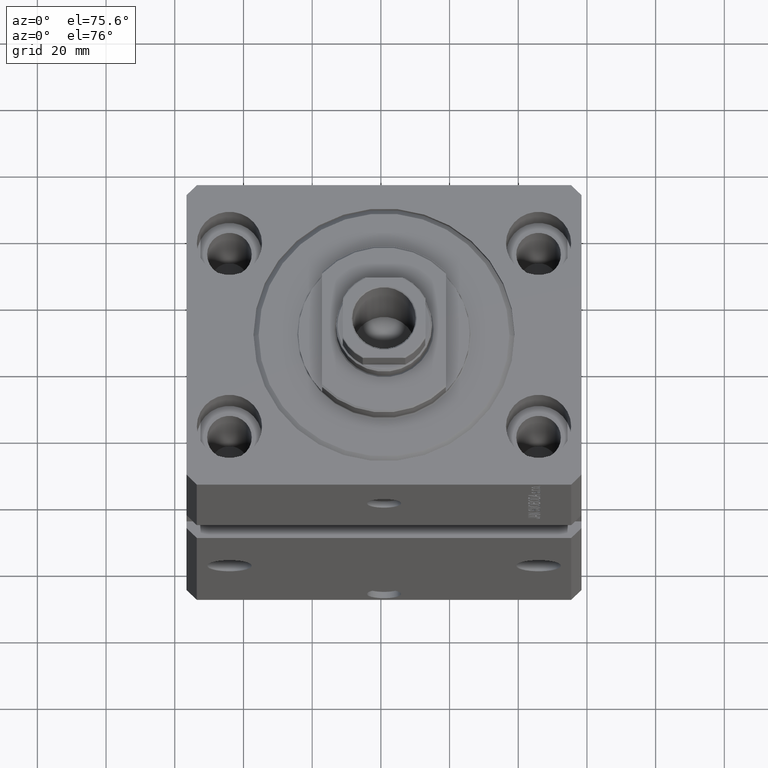
[diagram: clean part render]
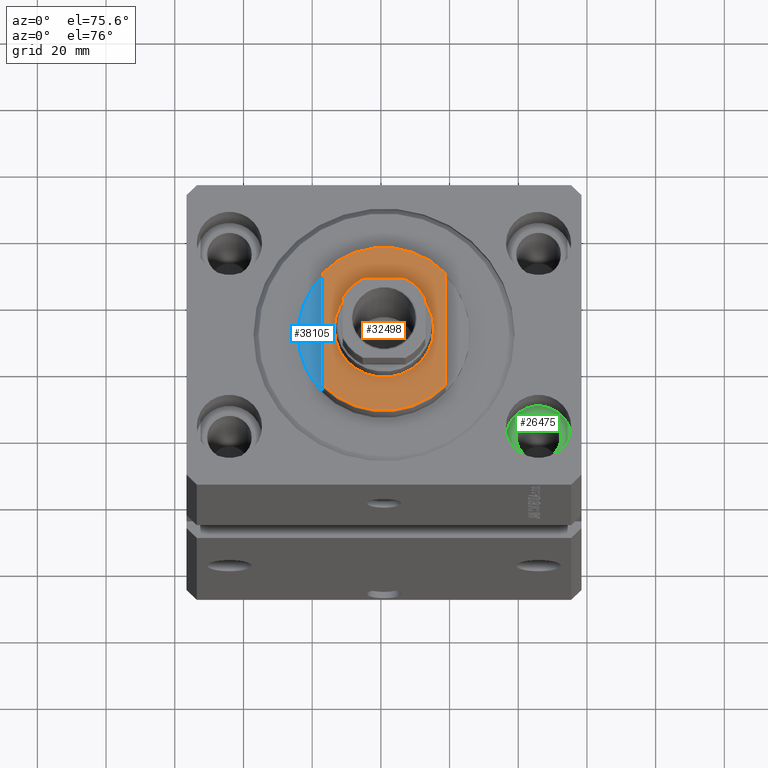
[diagram: same view with three faces highlighted in distinct colors, each labeled with its STEP entity id]
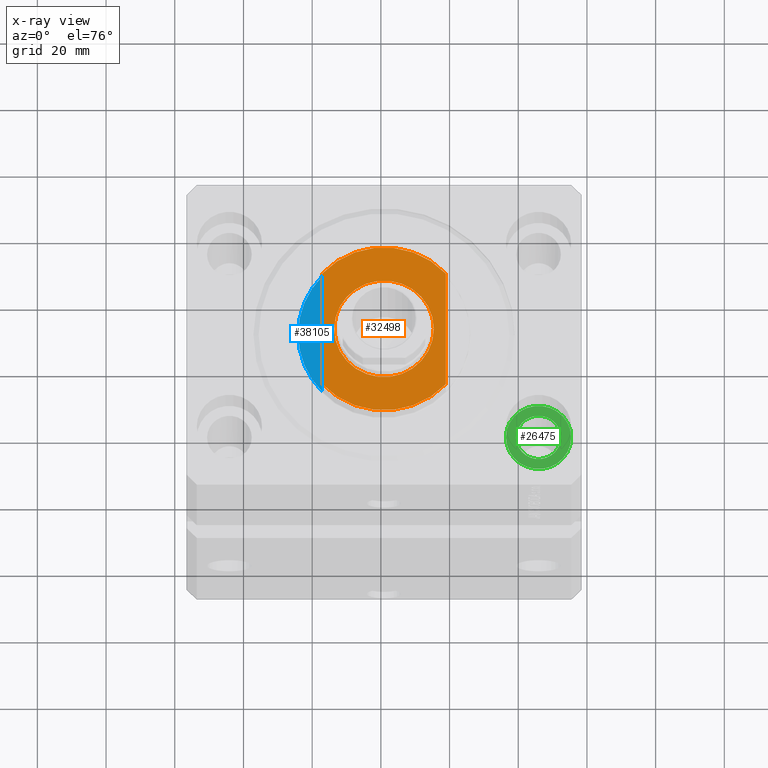
[diagram: x-ray of the same camera — body ghosted, the three highlighted faces saturated]
A machine part, auxiliary view with three faces highlighted in distinct colors.
The next image is the same camera in x-ray (body ghosted, the three faces saturated) — at least one of them is partly hidden behind the body in this view.
Their STEP definitions:

[orange] entity #32498 — the highlighted planar face has unit normal (0, 0, 1).
#1083 = DIRECTION ( 'NONE',  ( -1.000000000000000000, 0.000000000000000000, -0.000000000000000000 ) ) ;
#1826 = VERTEX_POINT ( 'NONE', #44300 ) ;
#2567 = CARTESIAN_POINT ( 'NONE',  ( 0.000000000000000000, 0.000000000000000000, -7.000000000000000000 ) ) ;
#2841 = CARTESIAN_POINT ( 'NONE',  ( -18.00000000000000000, -41.24318125460256113, -7.000000000000000000 ) ) ;
#2970 = VERTEX_POINT ( 'NONE', #21957 ) ;
#3282 = ORIENTED_EDGE ( 'NONE', *, *, #11497, .T. ) ;
#4281 = AXIS2_PLACEMENT_3D ( 'NONE', #29713, #19361, #1083 ) ;
#4353 = ORIENTED_EDGE ( 'NONE', *, *, #30651, .T. ) ;
#4560 = CARTESIAN_POINT ( 'NONE',  ( 0.000000000000000000, 0.000000000000000000, -7.000000000000000000 ) ) ;
#6021 = VERTEX_POINT ( 'NONE', #24318 ) ;
#9310 = AXIS2_PLACEMENT_3D ( 'NONE', #4560, #40252, #14672 ) ;
#9648 = AXIS2_PLACEMENT_3D ( 'NONE', #25056, #10756, #38941 ) ;
#9666 = DIRECTION ( 'NONE',  ( -0.000000000000000000, -1.000000000000000000, -0.000000000000000000 ) ) ;
#10299 = CIRCLE ( 'NONE', #36530, 24.49999999999996803 ) ;
#10756 = DIRECTION ( 'NONE',  ( -0.000000000000000000, -0.000000000000000000, 1.000000000000000000 ) ) ;
#11290 = VERTEX_POINT ( 'NONE', #21549 ) ;
#11497 = EDGE_CURVE ( 'NONE', #6021, #2970, #18654, .T. ) ;
#12092 = LINE ( 'NONE', #2841, #14177 ) ;
#12854 = ORIENTED_EDGE ( 'NONE', *, *, #29405, .T. ) ;
#13060 = ORIENTED_EDGE ( 'NONE', *, *, #21774, .T. ) ;
#14177 = VECTOR ( 'NONE', #9666, 1000.000000000000000 ) ;
#14672 = DIRECTION ( 'NONE',  ( -1.000000000000000000, 0.000000000000000000, 0.000000000000000000 ) ) ;
#15469 = CARTESIAN_POINT ( 'NONE',  ( -18.00000000000000000, 16.62077013859462227, -7.000000000000000000 ) ) ;
#18654 = CIRCLE ( 'NONE', #9648, 14.50000000000001421 ) ;
#19143 = DIRECTION ( 'NONE',  ( -1.000000000000000000, 0.000000000000000000, 0.000000000000000000 ) ) ;
#19361 = DIRECTION ( 'NONE',  ( 0.000000000000000000, 0.000000000000000000, -1.000000000000000000 ) ) ;
#19816 = FACE_BOUND ( 'NONE', #39324, .T. ) ;
#19824 = VERTEX_POINT ( 'NONE', #40930 ) ;
#20402 = DIRECTION ( 'NONE',  ( 0.000000000000000000, 0.000000000000000000, -1.000000000000000000 ) ) ;
#21549 = CARTESIAN_POINT ( 'NONE',  ( 18.00000000000000000, -16.62077013859462227, -7.000000000000000000 ) ) ;
#21774 = EDGE_CURVE ( 'NONE', #11290, #19824, #27307, .T. ) ;
#21957 = CARTESIAN_POINT ( 'NONE',  ( -14.50000000000001243, 0.000000000000000000, -7.000000000000000000 ) ) ;
#24318 = CARTESIAN_POINT ( 'NONE',  ( 14.50000000000001243, 1.775737858763663987E-15, -7.000000000000000000 ) ) ;
#24652 = EDGE_CURVE ( 'NONE', #2970, #6021, #33381, .T. ) ;
#25056 = CARTESIAN_POINT ( 'NONE',  ( 0.000000000000000000, 0.000000000000000000, -7.000000000000000000 ) ) ;
#25470 = VERTEX_POINT ( 'NONE', #15469 ) ;
#25504 = CARTESIAN_POINT ( 'NONE',  ( 0.000000000000000000, 0.000000000000000000, -7.000000000000000000 ) ) ;
#27307 = CIRCLE ( 'NONE', #9310, 24.49999999999996803 ) ;
#29036 = DIRECTION ( 'NONE',  ( -0.000000000000000000, -0.000000000000000000, 1.000000000000000000 ) ) ;
#29405 = EDGE_CURVE ( 'NONE', #25470, #1826, #10299, .T. ) ;
#29713 = CARTESIAN_POINT ( 'NONE',  ( 0.000000000000000000, 0.000000000000000000, -7.000000000000000000 ) ) ;
#30600 = VECTOR ( 'NONE', #42818, 1000.000000000000000 ) ;
#30651 = EDGE_CURVE ( 'NONE', #1826, #11290, #35306, .T. ) ;
#31783 = CARTESIAN_POINT ( 'NONE',  ( 18.00000000000000000, -41.24318125460256113, -7.000000000000000000 ) ) ;
#32498 = ADVANCED_FACE ( 'NONE', ( #19816, #33234 ), #44509, .T. ) ;
#33234 = FACE_OUTER_BOUND ( 'NONE', #34831, .T. ) ;
#33381 = CIRCLE ( 'NONE', #34110, 14.50000000000001421 ) ;
#34110 = AXIS2_PLACEMENT_3D ( 'NONE', #25504, #29036, #19143 ) ;
#34831 = EDGE_LOOP ( 'NONE', ( #12854, #4353, #13060, #35441 ) ) ;
#35306 = LINE ( 'NONE', #31783, #30600 ) ;
#35441 = ORIENTED_EDGE ( 'NONE', *, *, #38013, .F. ) ;
#35681 = ORIENTED_EDGE ( 'NONE', *, *, #24652, .T. ) ;
#36530 = AXIS2_PLACEMENT_3D ( 'NONE', #2567, #20402, #38502 ) ;
#38013 = EDGE_CURVE ( 'NONE', #25470, #19824, #12092, .T. ) ;
#38502 = DIRECTION ( 'NONE',  ( -1.000000000000000000, 0.000000000000000000, 0.000000000000000000 ) ) ;
#38941 = DIRECTION ( 'NONE',  ( -1.000000000000000000, 0.000000000000000000, 0.000000000000000000 ) ) ;
#39324 = EDGE_LOOP ( 'NONE', ( #35681, #3282 ) ) ;
#40252 = DIRECTION ( 'NONE',  ( 0.000000000000000000, 0.000000000000000000, -1.000000000000000000 ) ) ;
#40930 = CARTESIAN_POINT ( 'NONE',  ( -18.00000000000000000, -16.62077013859462227, -7.000000000000000000 ) ) ;
#42818 = DIRECTION ( 'NONE',  ( 0.000000000000000000, -1.000000000000000000, -0.000000000000000000 ) ) ;
#44300 = CARTESIAN_POINT ( 'NONE',  ( 18.00000000000000000, 16.62077013859462227, -7.000000000000000000 ) ) ;
#44509 = PLANE ( 'NONE',  #4281 ) ;

[blue] entity #38105 — the highlighted planar face has unit normal (0, 0, 1).
#3998 = PLANE ( 'NONE',  #29184 ) ;
#7841 = CIRCLE ( 'NONE', #28855, 25.00000000000000000 ) ;
#8690 = DIRECTION ( 'NONE',  ( 1.000000000000000000, 0.000000000000000000, 0.000000000000000000 ) ) ;
#9325 = DIRECTION ( 'NONE',  ( 0.000000000000000000, 0.000000000000000000, -1.000000000000000000 ) ) ;
#12250 = CIRCLE ( 'NONE', #38484, 25.00000000000000000 ) ;
#15384 = EDGE_CURVE ( 'NONE', #29834, #40379, #12250, .T. ) ;
#15670 = LINE ( 'NONE', #29765, #37554 ) ;
#17015 = DIRECTION ( 'NONE',  ( 0.000000000000000000, 0.000000000000000000, -1.000000000000000000 ) ) ;
#18316 = CARTESIAN_POINT ( 'NONE',  ( 0.000000000000000000, 0.000000000000000000, -1.000000000000000000 ) ) ;
#22235 = DIRECTION ( 'NONE',  ( 0.000000000000000000, -1.000000000000000000, -0.000000000000000000 ) ) ;
#23772 = EDGE_CURVE ( 'NONE', #25684, #29834, #7841, .T. ) ;
#24294 = CARTESIAN_POINT ( 'NONE',  ( 18.00000000000000000, -17.34935157289747920, -1.000000000000000000 ) ) ;
#25684 = VERTEX_POINT ( 'NONE', #45274 ) ;
#25721 = ORIENTED_EDGE ( 'NONE', *, *, #23772, .T. ) ;
#27586 = CARTESIAN_POINT ( 'NONE',  ( 0.000000000000000000, 0.000000000000000000, -1.000000000000000000 ) ) ;
#28855 = AXIS2_PLACEMENT_3D ( 'NONE', #41039, #9325, #38201 ) ;
#29184 = AXIS2_PLACEMENT_3D ( 'NONE', #18316, #32648, #8690 ) ;
#29765 = CARTESIAN_POINT ( 'NONE',  ( 18.00000000000000000, -41.24318125460256113, -1.000000000000000000 ) ) ;
#29834 = VERTEX_POINT ( 'NONE', #37981 ) ;
#32648 = DIRECTION ( 'NONE',  ( 0.000000000000000000, 0.000000000000000000, -1.000000000000000000 ) ) ;
#36177 = FACE_OUTER_BOUND ( 'NONE', #44372, .T. ) ;
#37554 = VECTOR ( 'NONE', #22235, 1000.000000000000000 ) ;
#37981 = CARTESIAN_POINT ( 'NONE',  ( 25.00000000000000000, 0.000000000000000000, -1.000000000000000000 ) ) ;
#38105 = ADVANCED_FACE ( 'NONE', ( #36177 ), #3998, .T. ) ;
#38201 = DIRECTION ( 'NONE',  ( -1.000000000000000000, 0.000000000000000000, 0.000000000000000000 ) ) ;
#38484 = AXIS2_PLACEMENT_3D ( 'NONE', #27586, #17015, #46374 ) ;
#40379 = VERTEX_POINT ( 'NONE', #24294 ) ;
#41039 = CARTESIAN_POINT ( 'NONE',  ( 0.000000000000000000, 0.000000000000000000, -1.000000000000000000 ) ) ;
#42955 = EDGE_CURVE ( 'NONE', #25684, #40379, #15670, .T. ) ;
#44273 = ORIENTED_EDGE ( 'NONE', *, *, #42955, .F. ) ;
#44372 = EDGE_LOOP ( 'NONE', ( #25721, #44719, #44273 ) ) ;
#44719 = ORIENTED_EDGE ( 'NONE', *, *, #15384, .T. ) ;
#45274 = CARTESIAN_POINT ( 'NONE',  ( 18.00000000000000000, 17.34935157289747920, -1.000000000000000000 ) ) ;
#46374 = DIRECTION ( 'NONE',  ( -1.000000000000000000, 0.000000000000000000, 0.000000000000000000 ) ) ;

[green] entity #26475 — the highlighted planar face has unit normal (0, 0, 1).
#999 = DIRECTION ( 'NONE',  ( 1.000000000000000000, 0.000000000000000000, 0.000000000000000000 ) ) ;
#1721 = ORIENTED_EDGE ( 'NONE', *, *, #45944, .T. ) ;
#2305 = DIRECTION ( 'NONE',  ( 1.000000000000000000, 0.000000000000000000, -0.000000000000000000 ) ) ;
#2313 = CARTESIAN_POINT ( 'NONE',  ( 35.50000000000000000, -27.49999999999999645, -13.00000000000000000 ) ) ;
#3782 = EDGE_LOOP ( 'NONE', ( #22384, #6207 ) ) ;
#3961 = VERTEX_POINT ( 'NONE', #32514 ) ;
#4216 = AXIS2_PLACEMENT_3D ( 'NONE', #37770, #8673, #2305 ) ;
#4299 = EDGE_CURVE ( 'NONE', #30035, #14823, #13184, .T. ) ;
#5142 = FACE_OUTER_BOUND ( 'NONE', #12503, .T. ) ;
#6207 = ORIENTED_EDGE ( 'NONE', *, *, #41046, .F. ) ;
#8673 = DIRECTION ( 'NONE',  ( 0.000000000000000000, 0.000000000000000000, 1.000000000000000000 ) ) ;
#12503 = EDGE_LOOP ( 'NONE', ( #45735, #1721 ) ) ;
#13184 = CIRCLE ( 'NONE', #28178, 6.499999999999999112 ) ;
#14823 = VERTEX_POINT ( 'NONE', #40469 ) ;
#15149 = CIRCLE ( 'NONE', #30901, 9.500000000000001776 ) ;
#16516 = CARTESIAN_POINT ( 'NONE',  ( 45.00000000000000000, -27.49999999999999645, -13.00000000000000000 ) ) ;
#16624 = FACE_BOUND ( 'NONE', #3782, .T. ) ;
#18642 = DIRECTION ( 'NONE',  ( 1.000000000000000000, 0.000000000000000000, 0.000000000000000000 ) ) ;
#19217 = PLANE ( 'NONE',  #4216 ) ;
#20999 = DIRECTION ( 'NONE',  ( 0.000000000000000000, 0.000000000000000000, 1.000000000000000000 ) ) ;
#21233 = CARTESIAN_POINT ( 'NONE',  ( 45.00000000000000000, -27.49999999999999645, -13.00000000000000000 ) ) ;
#21694 = CARTESIAN_POINT ( 'NONE',  ( 45.00000000000000000, -27.49999999999999645, -13.00000000000000000 ) ) ;
#22384 = ORIENTED_EDGE ( 'NONE', *, *, #4299, .F. ) ;
#26475 = ADVANCED_FACE ( 'NONE', ( #16624, #5142 ), #19217, .T. ) ;
#27501 = VERTEX_POINT ( 'NONE', #2313 ) ;
#28178 = AXIS2_PLACEMENT_3D ( 'NONE', #40666, #29172, #999 ) ;
#29172 = DIRECTION ( 'NONE',  ( 0.000000000000000000, 0.000000000000000000, 1.000000000000000000 ) ) ;
#29265 = CARTESIAN_POINT ( 'NONE',  ( 51.50000000000000000, -27.49999999999999645, -13.00000000000000000 ) ) ;
#30035 = VERTEX_POINT ( 'NONE', #29265 ) ;
#30112 = EDGE_CURVE ( 'NONE', #3961, #27501, #43313, .T. ) ;
#30901 = AXIS2_PLACEMENT_3D ( 'NONE', #21694, #40246, #18642 ) ;
#32514 = CARTESIAN_POINT ( 'NONE',  ( 54.50000000000000000, -27.49999999999999645, -13.00000000000000000 ) ) ;
#33110 = AXIS2_PLACEMENT_3D ( 'NONE', #16516, #38126, #35067 ) ;
#33546 = AXIS2_PLACEMENT_3D ( 'NONE', #21233, #20999, #35333 ) ;
#35067 = DIRECTION ( 'NONE',  ( 1.000000000000000000, 0.000000000000000000, 0.000000000000000000 ) ) ;
#35333 = DIRECTION ( 'NONE',  ( 1.000000000000000000, 0.000000000000000000, 0.000000000000000000 ) ) ;
#37770 = CARTESIAN_POINT ( 'NONE',  ( 45.00000000000000000, -27.49999999999999645, -13.00000000000000000 ) ) ;
#38126 = DIRECTION ( 'NONE',  ( 0.000000000000000000, 0.000000000000000000, 1.000000000000000000 ) ) ;
#38377 = CIRCLE ( 'NONE', #33110, 6.499999999999999112 ) ;
#40246 = DIRECTION ( 'NONE',  ( 0.000000000000000000, 0.000000000000000000, 1.000000000000000000 ) ) ;
#40469 = CARTESIAN_POINT ( 'NONE',  ( 38.50000000000000000, -27.49999999999999645, -13.00000000000000000 ) ) ;
#40666 = CARTESIAN_POINT ( 'NONE',  ( 45.00000000000000000, -27.49999999999999645, -13.00000000000000000 ) ) ;
#41046 = EDGE_CURVE ( 'NONE', #14823, #30035, #38377, .T. ) ;
#43313 = CIRCLE ( 'NONE', #33546, 9.500000000000001776 ) ;
#45735 = ORIENTED_EDGE ( 'NONE', *, *, #30112, .T. ) ;
#45944 = EDGE_CURVE ( 'NONE', #27501, #3961, #15149, .T. ) ;